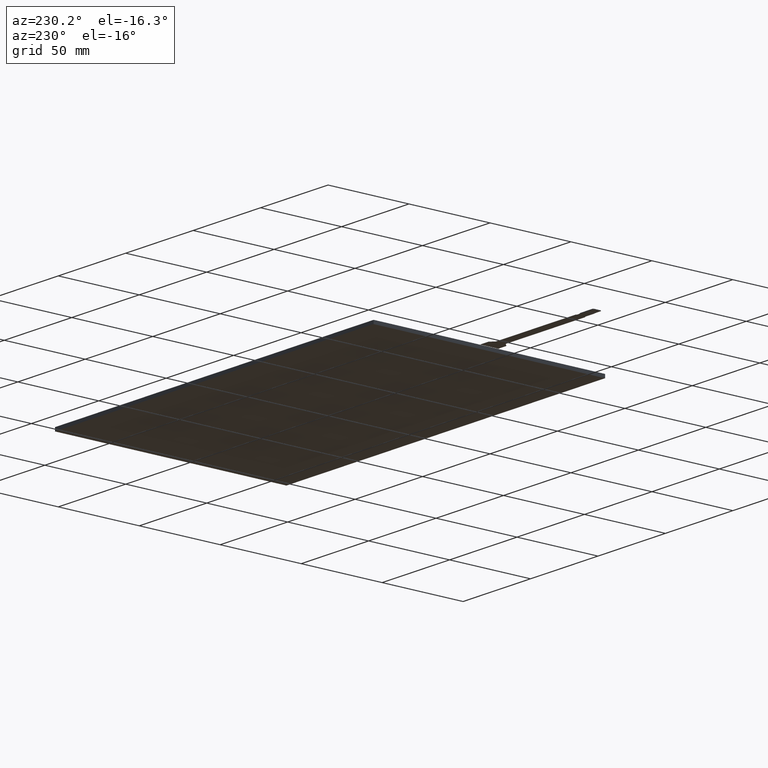
[diagram: clean part render]
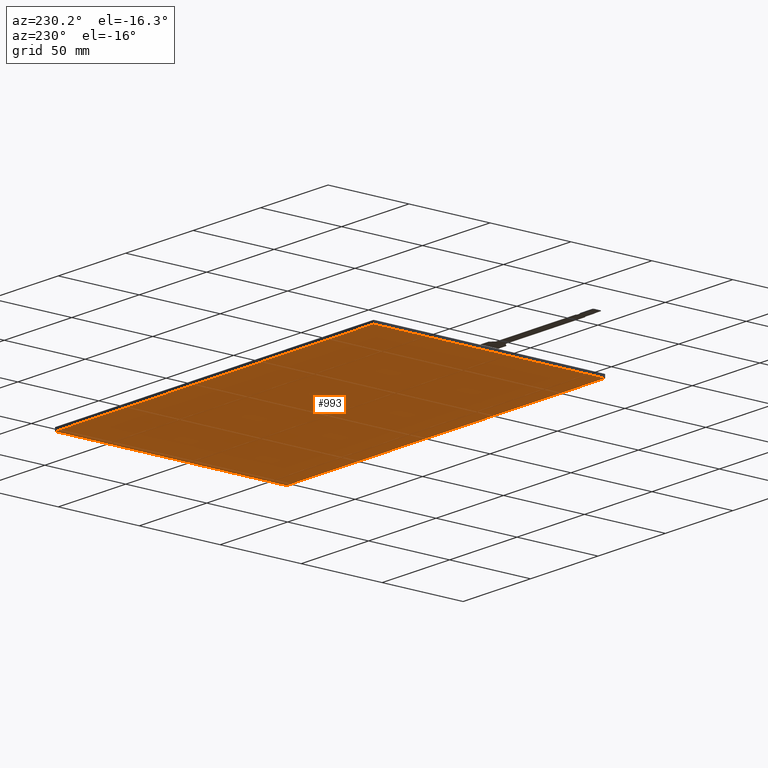
[diagram: same view with one face highlighted and labeled with its STEP entity id]
A machine part, auxiliary view. The second image highlights one B-rep face of the part: STEP entity #993.
In plain terms, the highlighted planar face has unit normal (0, 0, -1).
Its self-contained STEP definition (entity closure, byte-faithful):
#83=FACE_OUTER_BOUND('',#137,.T.);
#137=EDGE_LOOP('',(#724,#725,#726,#727));
#203=LINE('',#1437,#329);
#205=LINE('',#1441,#331);
#207=LINE('',#1445,#333);
#209=LINE('',#1448,#335);
#329=VECTOR('',#1171,10.);
#331=VECTOR('',#1175,10.);
#333=VECTOR('',#1179,10.);
#335=VECTOR('',#1183,10.);
#446=VERTEX_POINT('',#1434);
#447=VERTEX_POINT('',#1436);
#448=VERTEX_POINT('',#1440);
#449=VERTEX_POINT('',#1444);
#547=EDGE_CURVE('',#447,#446,#203,.T.);
#549=EDGE_CURVE('',#448,#447,#205,.T.);
#551=EDGE_CURVE('',#449,#448,#207,.T.);
#553=EDGE_CURVE('',#446,#449,#209,.T.);
#724=ORIENTED_EDGE('',*,*,#553,.T.);
#725=ORIENTED_EDGE('',*,*,#551,.T.);
#726=ORIENTED_EDGE('',*,*,#549,.T.);
#727=ORIENTED_EDGE('',*,*,#547,.T.);
#947=PLANE('',#1069);
#993=ADVANCED_FACE('',(#83),#947,.T.);
#1069=AXIS2_PLACEMENT_3D('',#1450,#1186,#1187);
#1171=DIRECTION('',(-2.48441516000035E-16,1.,0.));
#1175=DIRECTION('',(-1.,-1.12775014140618E-16,0.));
#1179=DIRECTION('',(1.24220758000018E-16,-1.,0.));
#1183=DIRECTION('',(1.,0.,0.));
#1186=DIRECTION('center_axis',(0.,0.,-1.));
#1187=DIRECTION('ref_axis',(-1.,0.,0.));
#1434=CARTESIAN_POINT('',(-119.56,71.5,-2.1));
#1436=CARTESIAN_POINT('',(-119.56,-71.5,-2.1));
#1437=CARTESIAN_POINT('',(-119.56,71.5,-2.1));
#1440=CARTESIAN_POINT('',(116.71,-71.5,-2.1));
#1441=CARTESIAN_POINT('',(-119.56,-71.5,-2.1));
#1444=CARTESIAN_POINT('',(116.71,71.5,-2.1));
#1445=CARTESIAN_POINT('',(116.71,-71.5,-2.1));
#1448=CARTESIAN_POINT('',(116.71,71.5,-2.1));
#1450=CARTESIAN_POINT('Origin',(-1.42500000000002,-1.77635683940025E-14,
-2.1));